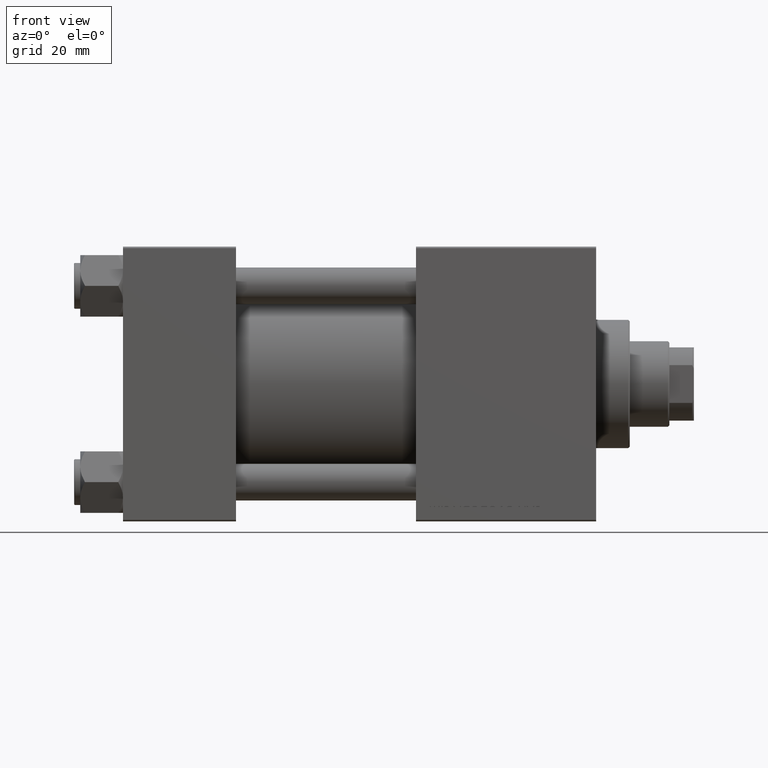
[diagram: clean part render]
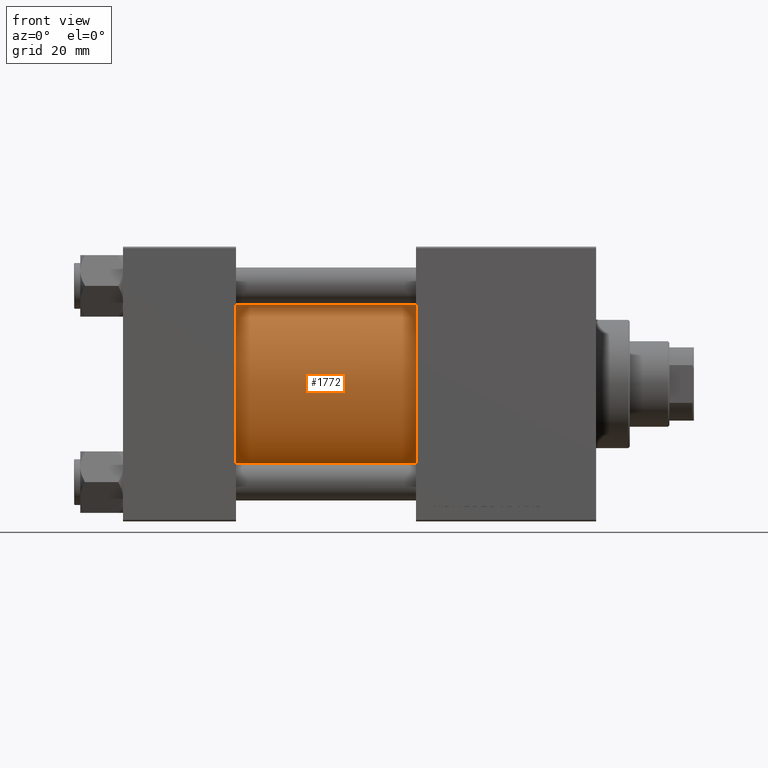
[diagram: same view with one face highlighted and labeled with its STEP entity id]
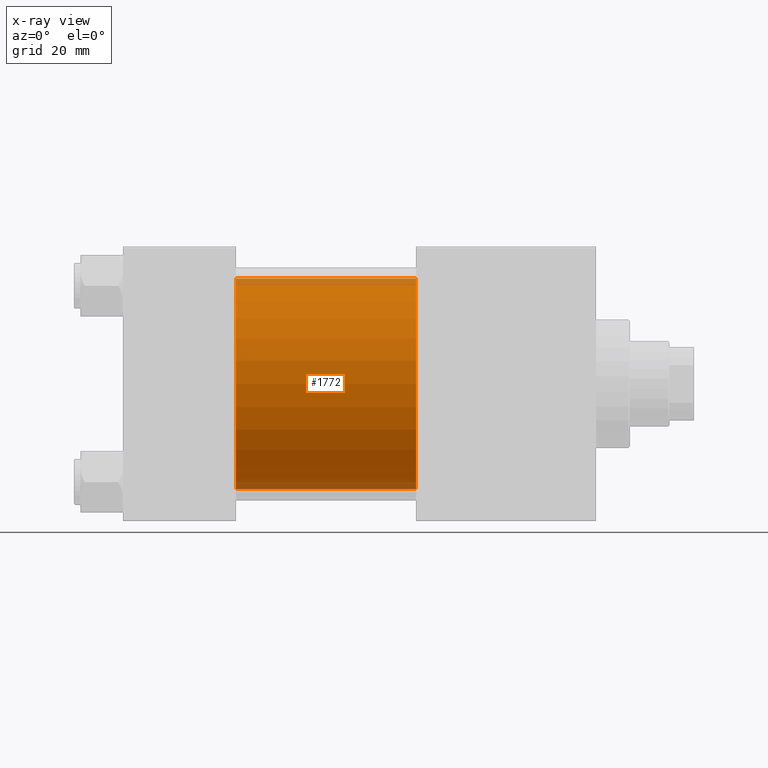
[diagram: x-ray of the same camera — body ghosted, the highlighted face saturated]
A machine part, front view. The second image highlights one B-rep face of the part: STEP entity #1772.
The next image is the same camera in x-ray: the body ghosted, the highlighted face saturated — about 7% of this face is hidden behind the body in this view.
In plain terms, the highlighted cylindrical surface (partial cylindrical patch) has radius 34.5 mm, axis along (-1, -0, -0).
Its self-contained STEP definition (entity closure, byte-faithful):
#1772 = ADVANCED_FACE ( 'NONE', ( #38967 ), #8482, .T. ) ;
#1925 = AXIS2_PLACEMENT_3D ( 'NONE', #27174, #46231, #23873 ) ;
#2314 = CARTESIAN_POINT ( 'NONE',  ( 37.00000000000000000, 1.622946243093158675E-15, -34.50000000000000000 ) ) ;
#3254 = VERTEX_POINT ( 'NONE', #22786 ) ;
#3380 = AXIS2_PLACEMENT_3D ( 'NONE', #19908, #35401, #31095 ) ;
#4537 = CARTESIAN_POINT ( 'NONE',  ( 96.00000000000000000, -2.602085213965210642E-15, 34.50000000000000000 ) ) ;
#6998 = CARTESIAN_POINT ( 'NONE',  ( 37.00000000000000000, -2.602085213965210642E-15, 34.50000000000000000 ) ) ;
#8287 = VERTEX_POINT ( 'NONE', #2314 ) ;
#8482 = CYLINDRICAL_SURFACE ( 'NONE', #3380, 34.50000000000000000 ) ;
#8997 = ORIENTED_EDGE ( 'NONE', *, *, #41141, .F. ) ;
#10929 = CARTESIAN_POINT ( 'NONE',  ( 96.00000000000000000, -2.602085213965210642E-15, 0.000000000000000000 ) ) ;
#11463 = EDGE_CURVE ( 'NONE', #18574, #8287, #18921, .T. ) ;
#12662 = EDGE_CURVE ( 'NONE', #3254, #18574, #23823, .T. ) ;
#13654 = DIRECTION ( 'NONE',  ( -1.000000000000000000, -0.000000000000000000, -0.000000000000000000 ) ) ;
#14143 = VERTEX_POINT ( 'NONE', #35765 ) ;
#17693 = CARTESIAN_POINT ( 'NONE',  ( 96.00000000000000000, 1.622946243093158675E-15, -34.50000000000000000 ) ) ;
#18574 = VERTEX_POINT ( 'NONE', #6998 ) ;
#18921 = CIRCLE ( 'NONE', #1925, 34.50000000000000000 ) ;
#19749 = DIRECTION ( 'NONE',  ( -1.000000000000000000, -0.000000000000000000, -0.000000000000000000 ) ) ;
#19908 = CARTESIAN_POINT ( 'NONE',  ( 96.00000000000000000, -2.602085213965210642E-15, 0.000000000000000000 ) ) ;
#21698 = CIRCLE ( 'NONE', #36289, 34.50000000000000000 ) ;
#22786 = CARTESIAN_POINT ( 'NONE',  ( 96.00000000000000000, -2.602085213965210642E-15, 34.50000000000000000 ) ) ;
#23823 = LINE ( 'NONE', #4537, #33559 ) ;
#23873 = DIRECTION ( 'NONE',  ( 0.000000000000000000, 0.000000000000000000, 1.000000000000000000 ) ) ;
#25732 = ORIENTED_EDGE ( 'NONE', *, *, #12662, .T. ) ;
#27174 = CARTESIAN_POINT ( 'NONE',  ( 37.00000000000000000, -2.602085213965210642E-15, 0.000000000000000000 ) ) ;
#29124 = LINE ( 'NONE', #17693, #30508 ) ;
#30508 = VECTOR ( 'NONE', #13654, 1000.000000000000000 ) ;
#31095 = DIRECTION ( 'NONE',  ( 0.000000000000000000, 0.000000000000000000, 1.000000000000000000 ) ) ;
#33559 = VECTOR ( 'NONE', #19749, 1000.000000000000000 ) ;
#34018 = DIRECTION ( 'NONE',  ( 1.000000000000000000, 0.000000000000000000, 0.000000000000000000 ) ) ;
#35401 = DIRECTION ( 'NONE',  ( -1.000000000000000000, -0.000000000000000000, -0.000000000000000000 ) ) ;
#35757 = ORIENTED_EDGE ( 'NONE', *, *, #39062, .F. ) ;
#35765 = CARTESIAN_POINT ( 'NONE',  ( 96.00000000000000000, 1.622946243093158675E-15, -34.50000000000000000 ) ) ;
#36289 = AXIS2_PLACEMENT_3D ( 'NONE', #10929, #34018, #41653 ) ;
#38893 = EDGE_LOOP ( 'NONE', ( #35757, #8997, #25732, #45763 ) ) ;
#38967 = FACE_OUTER_BOUND ( 'NONE', #38893, .T. ) ;
#39062 = EDGE_CURVE ( 'NONE', #14143, #8287, #29124, .T. ) ;
#41141 = EDGE_CURVE ( 'NONE', #3254, #14143, #21698, .T. ) ;
#41653 = DIRECTION ( 'NONE',  ( 0.000000000000000000, 0.000000000000000000, -1.000000000000000000 ) ) ;
#45763 = ORIENTED_EDGE ( 'NONE', *, *, #11463, .T. ) ;
#46231 = DIRECTION ( 'NONE',  ( 1.000000000000000000, -0.000000000000000000, 0.000000000000000000 ) ) ;